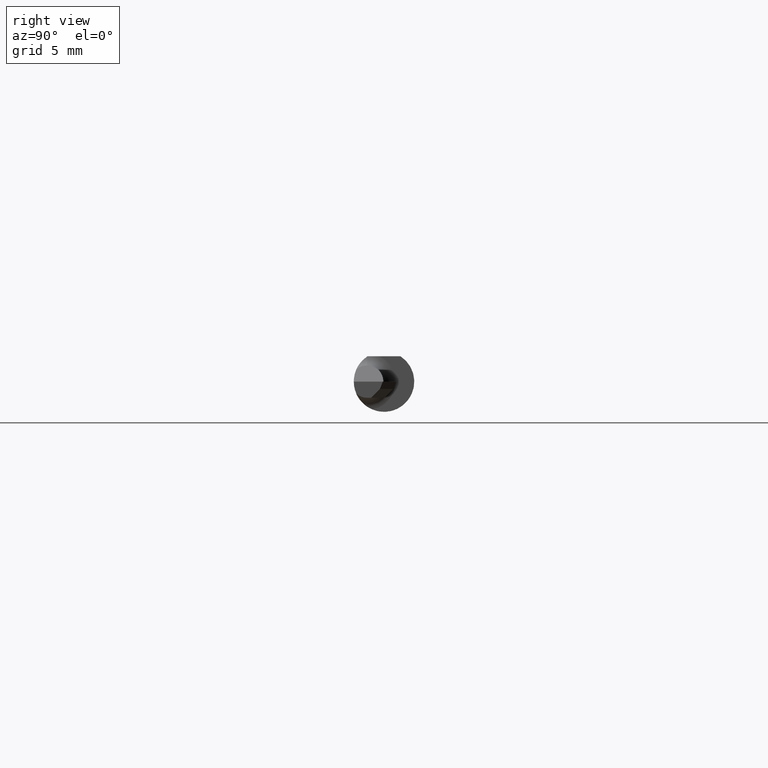
[diagram: clean part render]
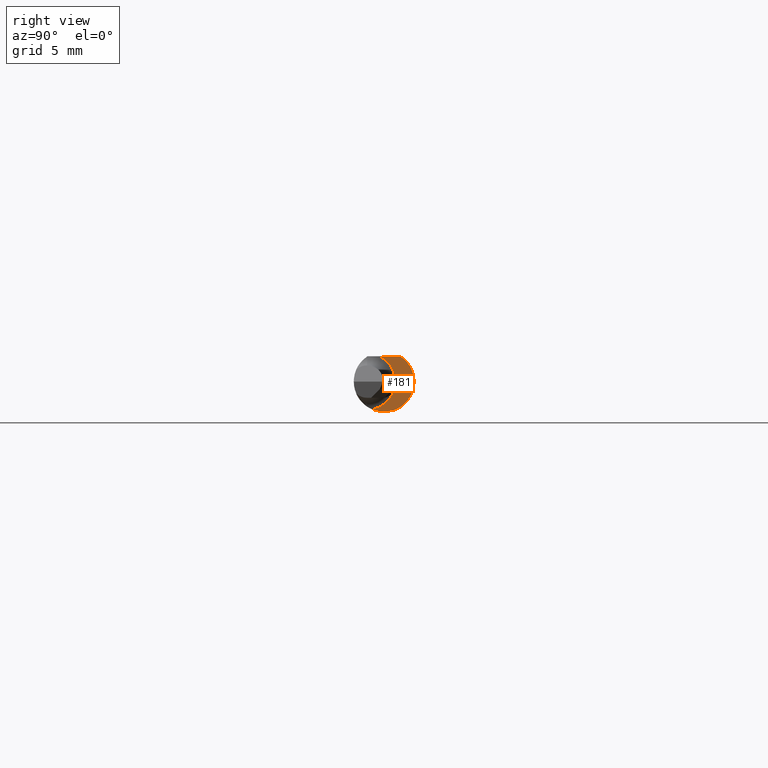
[diagram: same view with one face highlighted and labeled with its STEP entity id]
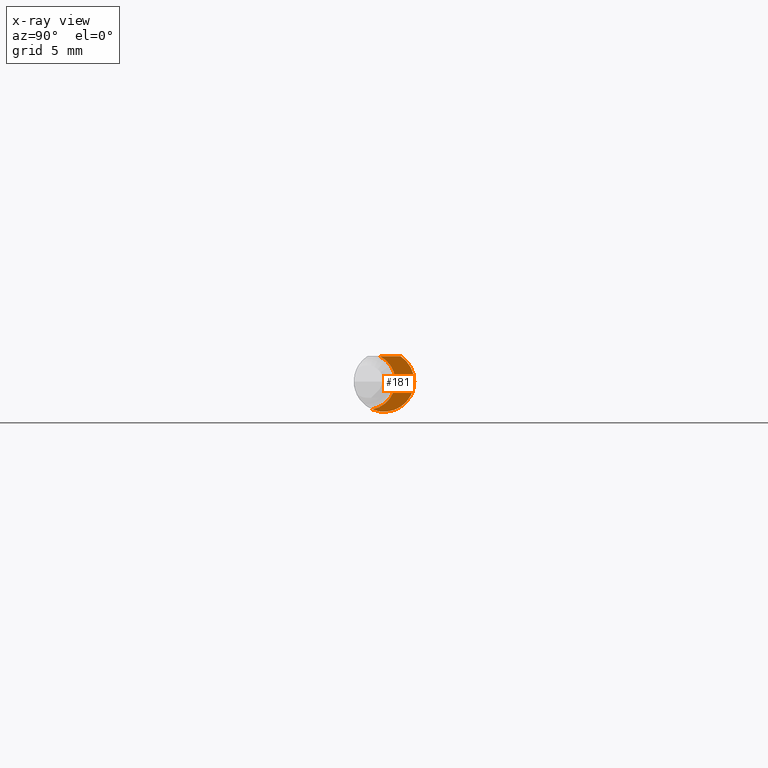
[diagram: x-ray of the same camera — body ghosted, the highlighted face saturated]
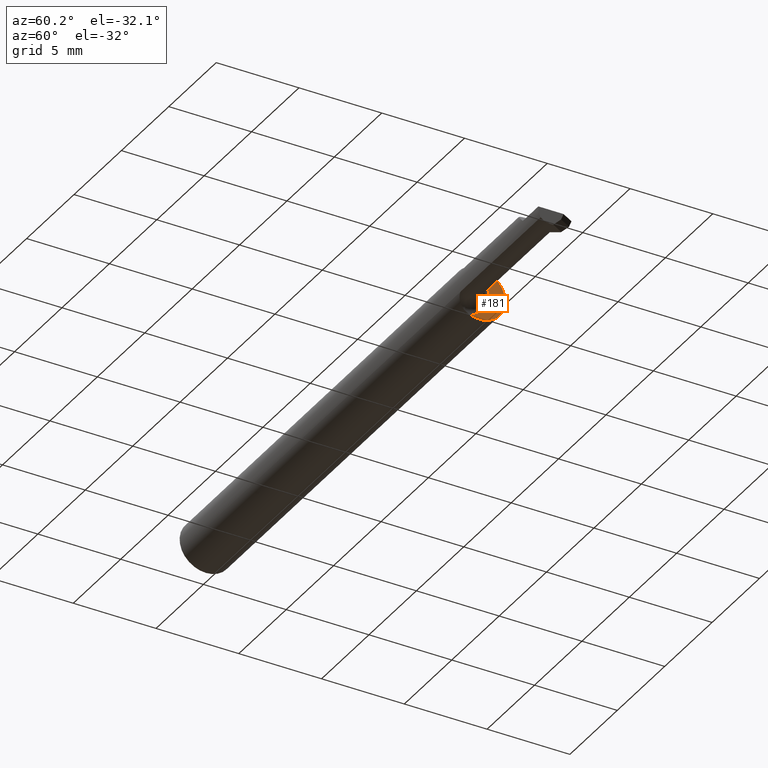
[diagram: same view with one face highlighted and labeled with its STEP entity id]
A machine part, right view. The second image highlights one B-rep face of the part: STEP entity #181.
The next image is the same camera in x-ray: the body ghosted, the highlighted face saturated — about 0% of this face is hidden behind the body in this view.
A second angle (auxiliary view) of the same face is appended — the face is thin or edge-on in the first view.
In plain terms, the highlighted planar face has unit normal (1, 0, 0).
Its self-contained STEP definition (entity closure, byte-faithful):
#17 = CARTESIAN_POINT ( 'NONE',  ( 1.145000000000000240, 0.000000000000000000, 0.000000000000000000 ) ) ;
#79 = DIRECTION ( 'NONE',  ( 0.000000000000000000, 0.000000000000000000, 1.000000000000000000 ) ) ;
#145 = DIRECTION ( 'NONE',  ( 0.000000000000000000, 0.000000000000000000, -1.000000000000000000 ) ) ;
#149 = CARTESIAN_POINT ( 'NONE',  ( 1.145000000000000240, -0.02410035868005742585, -0.05750387127396364845 ) ) ;
#157 = PLANE ( 'NONE',  #324 ) ;
#165 = EDGE_CURVE ( 'NONE', #551, #899, #845, .T. ) ;
#171 = CIRCLE ( 'NONE', #755, 0.05849999999999998951 ) ;
#181 = ADVANCED_FACE ( 'NONE', ( #769 ), #157, .T. ) ;
#216 = DIRECTION ( 'NONE',  ( 0.000000000000000000, 0.000000000000000000, -1.000000000000000000 ) ) ;
#223 = ORIENTED_EDGE ( 'NONE', *, *, #481, .T. ) ;
#324 = AXIS2_PLACEMENT_3D ( 'NONE', #504, #773, #145 ) ;
#344 = VERTEX_POINT ( 'NONE', #408 ) ;
#346 = LINE ( 'NONE', #567, #626 ) ;
#358 = CARTESIAN_POINT ( 'NONE',  ( 1.145000000000000240, 0.03386738844375224849, 0.05234999999999997294 ) ) ;
#408 = CARTESIAN_POINT ( 'NONE',  ( 1.145000000000000240, -0.008740088089003446997, 0.05234999999999997294 ) ) ;
#425 = CARTESIAN_POINT ( 'NONE',  ( 1.145000000000000240, -0.03485000000000003373, 0.000000000000000000 ) ) ;
#456 = AXIS2_PLACEMENT_3D ( 'NONE', #17, #782, #216 ) ;
#481 = EDGE_CURVE ( 'NONE', #344, #551, #171, .T. ) ;
#504 = CARTESIAN_POINT ( 'NONE',  ( 1.145000000000000240, 0.06234999999999996101, 0.000000000000000000 ) ) ;
#541 = EDGE_CURVE ( 'NONE', #344, #899, #346, .T. ) ;
#551 = VERTEX_POINT ( 'NONE', #149 ) ;
#567 = CARTESIAN_POINT ( 'NONE',  ( 1.145000000000000240, 0.06235000000000000264, 0.05234999999999997294 ) ) ;
#620 = ORIENTED_EDGE ( 'NONE', *, *, #165, .T. ) ;
#626 = VECTOR ( 'NONE', #844, 39.37007874015748143 ) ;
#700 = EDGE_LOOP ( 'NONE', ( #620, #789, #223 ) ) ;
#702 = DIRECTION ( 'NONE',  ( -1.000000000000000000, -0.000000000000000000, -0.000000000000000000 ) ) ;
#755 = AXIS2_PLACEMENT_3D ( 'NONE', #425, #702, #79 ) ;
#769 = FACE_OUTER_BOUND ( 'NONE', #700, .T. ) ;
#773 = DIRECTION ( 'NONE',  ( 1.000000000000000000, 0.000000000000000000, 0.000000000000000000 ) ) ;
#782 = DIRECTION ( 'NONE',  ( 1.000000000000000000, 0.000000000000000000, 0.000000000000000000 ) ) ;
#789 = ORIENTED_EDGE ( 'NONE', *, *, #541, .F. ) ;
#844 = DIRECTION ( 'NONE',  ( 0.000000000000000000, 1.000000000000000000, 0.000000000000000000 ) ) ;
#845 = CIRCLE ( 'NONE', #456, 0.06235000000000000264 ) ;
#899 = VERTEX_POINT ( 'NONE', #358 ) ;